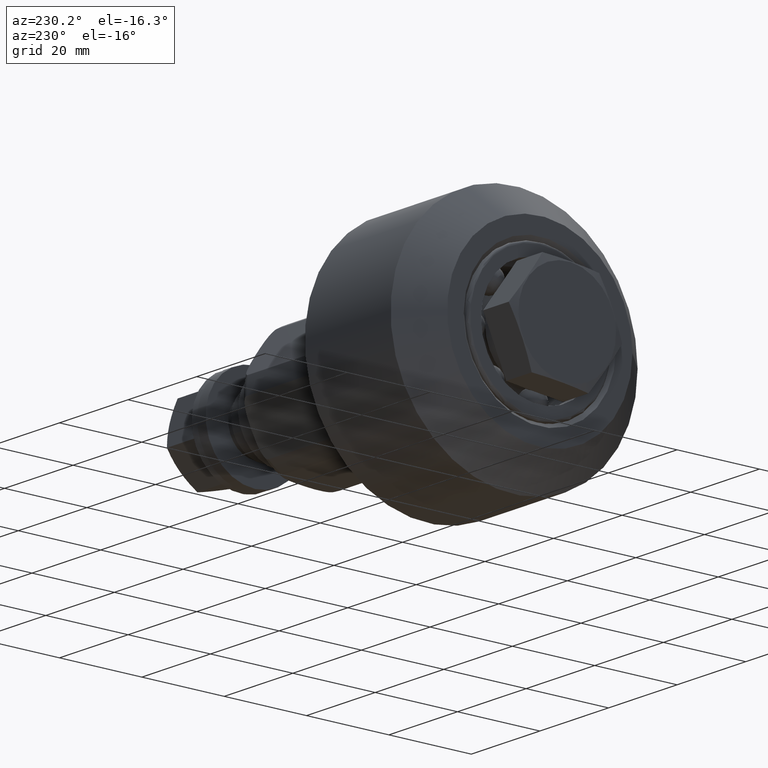
[diagram: clean part render]
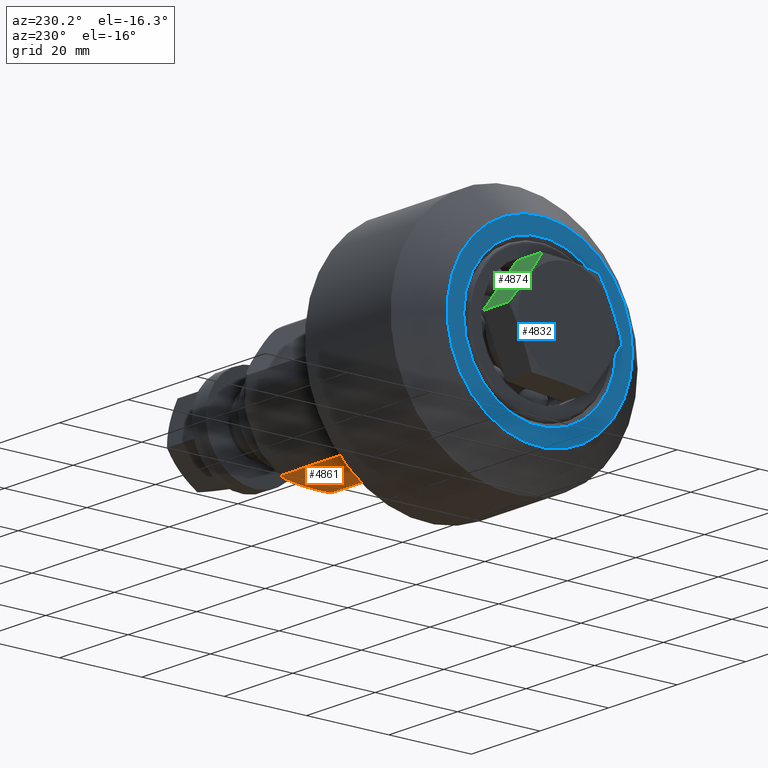
[diagram: same view with three faces highlighted in distinct colors, each labeled with its STEP entity id]
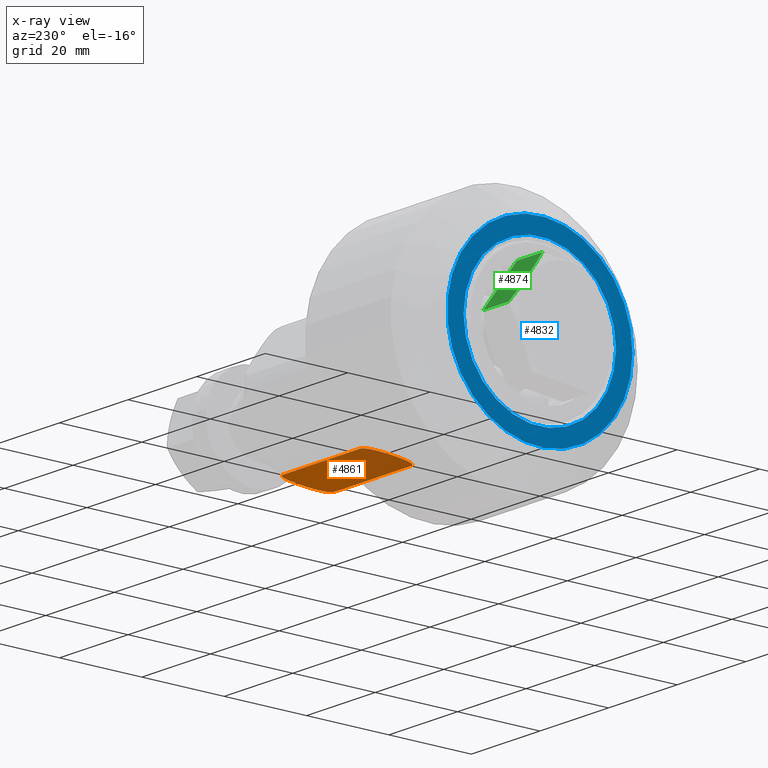
[diagram: x-ray of the same camera — body ghosted, the three highlighted faces saturated]
A machine part, auxiliary view with three faces highlighted in distinct colors.
The next image is the same camera in x-ray (body ghosted, the three faces saturated) — at least one of them is partly hidden behind the body in this view.
Their STEP definitions:

[orange] entity #4861 — the highlighted planar face has unit normal (-0, 0.0803, -0.9968).
#198=B_SPLINE_CURVE_WITH_KNOTS('',3,(#7471,#7472,#7473,#7474,#7475,#7476,
#7477,#7478,#7479,#7480,#7481,#7482,#7483,#7484,#7485,#7486,#7487,#7488,
#7489,#7490,#7491,#7492,#7493),.UNSPECIFIED.,.F.,.F.,(4,2,2,2,2,3,2,2,2,
2,4),(-0.65445505176569,-0.615458381337922,-0.559182163310771,-0.457887403956305,
-0.228943701978153,0.,0.228943701978153,0.457887403956305,0.559182163310771,
0.615458381337922,0.65445505176569),.UNSPECIFIED.);
#205=B_SPLINE_CURVE_WITH_KNOTS('',3,(#7617,#7618,#7619,#7620,#7621,#7622,
#7623,#7624,#7625,#7626,#7627,#7628,#7629,#7630,#7631,#7632,#7633,#7634,
#7635,#7636,#7637,#7638),.UNSPECIFIED.,.F.,.F.,(4,2,2,2,2,2,2,2,2,2,4),
(0.65445505176569,0.693451722193458,0.74972794022061,0.851022699575076,
1.07996640155323,1.30891010353138,1.53785380550953,1.76679750748769,1.86809226684215,
1.9243684848693,1.96336515529707),.UNSPECIFIED.);
#388=PLANE('',#5371);
#605=FACE_OUTER_BOUND('',#883,.T.);
#883=EDGE_LOOP('',(#3419,#3420,#3421,#3422));
#1167=LINE('',#7679,#1457);
#1170=LINE('',#7683,#1460);
#1457=VECTOR('',#6006,10.);
#1460=VECTOR('',#6011,10.);
#2028=VERTEX_POINT('',#7468);
#2029=VERTEX_POINT('',#7470);
#2041=VERTEX_POINT('',#7614);
#2042=VERTEX_POINT('',#7616);
#2556=EDGE_CURVE('',#2029,#2028,#198,.T.);
#2570=EDGE_CURVE('',#2042,#2041,#205,.T.);
#2581=EDGE_CURVE('',#2041,#2029,#1167,.T.);
#2584=EDGE_CURVE('',#2028,#2042,#1170,.T.);
#3419=ORIENTED_EDGE('',*,*,#2556,.T.);
#3420=ORIENTED_EDGE('',*,*,#2584,.T.);
#3421=ORIENTED_EDGE('',*,*,#2570,.T.);
#3422=ORIENTED_EDGE('',*,*,#2581,.T.);
#4861=ADVANCED_FACE('',(#605),#388,.T.);
#5371=AXIS2_PLACEMENT_3D('',#7692,#6025,#6026);
#6006=DIRECTION('',(1.,0.,0.));
#6011=DIRECTION('',(-1.,0.,0.));
#6025=DIRECTION('center_axis',(0.,-0.866025403784439,-0.5));
#6026=DIRECTION('ref_axis',(0.,-0.5,0.866025403784439));
#7468=CARTESIAN_POINT('',(11.25,-16.1153810567666,-2.08734122634724));
#7470=CARTESIAN_POINT('',(11.25,-9.86538105676658,-12.9126587736527));
#7471=CARTESIAN_POINT('Ctrl Pts',(11.25,-9.86538105676658,-12.9126587736527));
#7472=CARTESIAN_POINT('Ctrl Pts',(11.3799889014259,-9.86538105676658,-12.9126587736527));
#7473=CARTESIAN_POINT('Ctrl Pts',(11.5301733976963,-9.88645510449862,-12.8761574522597));
#7474=CARTESIAN_POINT('Ctrl Pts',(11.8106276528386,-9.96095361760971,-12.747122242463));
#7475=CARTESIAN_POINT('Ctrl Pts',(11.9729148831963,-10.0389521084763,-12.6120248933684));
#7476=CARTESIAN_POINT('Ctrl Pts',(12.2949896343247,-10.2464016996404,-12.2527116614627));
#7477=CARTESIAN_POINT('Ctrl Pts',(12.4633942317916,-10.4306637032622,-11.9335605092853));
#7478=CARTESIAN_POINT('Ctrl Pts',(12.8226536595242,-10.9509237372463,-11.0324436972774));
#7479=CARTESIAN_POINT('Ctrl Pts',(12.9412026717376,-11.360770993292,-10.3225674264636));
#7480=CARTESIAN_POINT('Ctrl Pts',(13.083465251009,-12.1896464723356,-8.886912983612));
#7481=CARTESIAN_POINT('Ctrl Pts',(13.1040496217739,-12.6088082201363,-8.16090353983178));
#7482=CARTESIAN_POINT('Ctrl Pts',(13.1040496217739,-12.9903810567666,-7.5));
#7483=CARTESIAN_POINT('Ctrl Pts',(13.1040496217739,-13.3719538933968,-6.83909646016822));
#7484=CARTESIAN_POINT('Ctrl Pts',(13.083465251009,-13.7911156411976,-6.11308701638799));
#7485=CARTESIAN_POINT('Ctrl Pts',(12.9412026717376,-14.6199911202412,-4.67743257353644));
#7486=CARTESIAN_POINT('Ctrl Pts',(12.8226536595242,-15.0298383762869,-3.96755630272263));
#7487=CARTESIAN_POINT('Ctrl Pts',(12.4633942317916,-15.550098410271,-3.06643949071468));
#7488=CARTESIAN_POINT('Ctrl Pts',(12.2949896343247,-15.7343604138928,-2.74728833853726));
#7489=CARTESIAN_POINT('Ctrl Pts',(11.9729148831963,-15.9418100050569,-2.38797510663162));
#7490=CARTESIAN_POINT('Ctrl Pts',(11.8106276528386,-16.0198084959235,-2.25287775753701));
#7491=CARTESIAN_POINT('Ctrl Pts',(11.5301733976963,-16.0943070090345,-2.12384254774027));
#7492=CARTESIAN_POINT('Ctrl Pts',(11.3799889014259,-16.1153810567666,-2.08734122634725));
#7493=CARTESIAN_POINT('Ctrl Pts',(11.25,-16.1153810567666,-2.08734122634725));
#7614=CARTESIAN_POINT('',(-11.25,-9.86538105676658,-12.9126587736527));
#7616=CARTESIAN_POINT('',(-11.25,-16.1153810567666,-2.08734122634724));
#7617=CARTESIAN_POINT('Ctrl Pts',(-11.25,-16.1153810567666,-2.08734122634725));
#7618=CARTESIAN_POINT('Ctrl Pts',(-11.3799889014259,-16.1153810567666,-2.08734122634725));
#7619=CARTESIAN_POINT('Ctrl Pts',(-11.5301733976963,-16.0943070090345,-2.12384254774027));
#7620=CARTESIAN_POINT('Ctrl Pts',(-11.8106276528386,-16.0198084959235,-2.25287775753701));
#7621=CARTESIAN_POINT('Ctrl Pts',(-11.9729148831963,-15.9418100050569,-2.38797510663162));
#7622=CARTESIAN_POINT('Ctrl Pts',(-12.2949896343247,-15.7343604138928,-2.74728833853726));
#7623=CARTESIAN_POINT('Ctrl Pts',(-12.4633942317916,-15.550098410271,-3.06643949071468));
#7624=CARTESIAN_POINT('Ctrl Pts',(-12.8226536595242,-15.0298383762869,-3.96755630272263));
#7625=CARTESIAN_POINT('Ctrl Pts',(-12.9412026717376,-14.6199911202412,-4.67743257353644));
#7626=CARTESIAN_POINT('Ctrl Pts',(-13.083465251009,-13.7911156411976,-6.11308701638799));
#7627=CARTESIAN_POINT('Ctrl Pts',(-13.1040496217739,-13.3719538933968,-6.83909646016822));
#7628=CARTESIAN_POINT('Ctrl Pts',(-13.1040496217739,-12.6088082201363,-8.16090353983178));
#7629=CARTESIAN_POINT('Ctrl Pts',(-13.083465251009,-12.1896464723356,-8.886912983612));
#7630=CARTESIAN_POINT('Ctrl Pts',(-12.9412026717376,-11.360770993292,-10.3225674264636));
#7631=CARTESIAN_POINT('Ctrl Pts',(-12.8226536595242,-10.9509237372463,-11.0324436972774));
#7632=CARTESIAN_POINT('Ctrl Pts',(-12.4633942317916,-10.4306637032622,-11.9335605092853));
#7633=CARTESIAN_POINT('Ctrl Pts',(-12.2949896343247,-10.2464016996404,-12.2527116614627));
#7634=CARTESIAN_POINT('Ctrl Pts',(-11.9729148831963,-10.0389521084763,-12.6120248933684));
#7635=CARTESIAN_POINT('Ctrl Pts',(-11.8106276528386,-9.96095361760971,-12.747122242463));
#7636=CARTESIAN_POINT('Ctrl Pts',(-11.5301733976963,-9.88645510449862,-12.8761574522597));
#7637=CARTESIAN_POINT('Ctrl Pts',(-11.3799889014259,-9.86538105676658,-12.9126587736527));
#7638=CARTESIAN_POINT('Ctrl Pts',(-11.25,-9.86538105676658,-12.9126587736527));
#7679=CARTESIAN_POINT('',(-13.25,-9.86538105676658,-12.9126587736527));
#7683=CARTESIAN_POINT('',(-13.25,-16.1153810567666,-2.08734122634724));
#7692=CARTESIAN_POINT('Origin',(13.25,-8.66025403784439,-15.));

[blue] entity #4832 — the highlighted planar face has unit normal (-1, 0, 0).
#342=FACE_BOUND('',#848,.T.);
#376=PLANE('',#5307);
#576=FACE_OUTER_BOUND('',#847,.T.);
#847=EDGE_LOOP('',(#3286));
#848=EDGE_LOOP('',(#3287));
#1731=CIRCLE('',#5304,18.5);
#1734=CIRCLE('',#5308,22.5);
#1998=VERTEX_POINT('',#7283);
#2001=VERTEX_POINT('',#7291);
#2515=EDGE_CURVE('',#1998,#1998,#1731,.T.);
#2519=EDGE_CURVE('',#2001,#2001,#1734,.T.);
#3286=ORIENTED_EDGE('',*,*,#2519,.F.);
#3287=ORIENTED_EDGE('',*,*,#2515,.F.);
#4832=ADVANCED_FACE('',(#576,#342),#376,.T.);
#5304=AXIS2_PLACEMENT_3D('',#7284,#5870,#5871);
#5307=AXIS2_PLACEMENT_3D('',#7290,#5877,#5878);
#5308=AXIS2_PLACEMENT_3D('',#7292,#5879,#5880);
#5870=DIRECTION('center_axis',(-1.,0.,0.));
#5871=DIRECTION('ref_axis',(0.,-1.,0.));
#5877=DIRECTION('center_axis',(-1.,0.,0.));
#5878=DIRECTION('ref_axis',(0.,0.,1.));
#5879=DIRECTION('center_axis',(1.,0.,0.));
#5880=DIRECTION('ref_axis',(0.,1.,0.));
#7283=CARTESIAN_POINT('',(-20.,18.5,-2.2655965784226E-15));
#7284=CARTESIAN_POINT('Origin',(-20.,0.,0.));
#7290=CARTESIAN_POINT('Origin',(-20.,20.,0.));
#7291=CARTESIAN_POINT('',(-20.,-22.5,-2.75545529808154E-15));
#7292=CARTESIAN_POINT('Origin',(-20.,0.,0.));

[green] entity #4874 — the highlighted planar face has unit normal (0, 0.8063, 0.5915).
#64=(
BOUNDED_CURVE()
B_SPLINE_CURVE(2,(#7749,#7750,#7751),.UNSPECIFIED.,.F.,.F.)
B_SPLINE_CURVE_WITH_KNOTS((3,3),(0.,1.38920738919511),.UNSPECIFIED.)
CURVE()
GEOMETRIC_REPRESENTATION_ITEM()
RATIONAL_B_SPLINE_CURVE((1.,1.15470053837925,1.))
REPRESENTATION_ITEM('')
);
#392=PLANE('',#5397);
#618=FACE_OUTER_BOUND('',#899,.T.);
#899=EDGE_LOOP('',(#3470,#3471,#3472,#3473));
#1181=LINE('',#7764,#1471);
#1182=LINE('',#7766,#1472);
#1183=LINE('',#7767,#1473);
#1471=VECTOR('',#6088,10.);
#1472=VECTOR('',#6089,10.);
#1473=VECTOR('',#6090,10.);
#2059=VERTEX_POINT('',#7744);
#2060=VERTEX_POINT('',#7748);
#2063=VERTEX_POINT('',#7763);
#2064=VERTEX_POINT('',#7765);
#2608=EDGE_CURVE('',#2060,#2059,#64,.T.);
#2613=EDGE_CURVE('',#2063,#2059,#1181,.T.);
#2614=EDGE_CURVE('',#2064,#2063,#1182,.T.);
#2615=EDGE_CURVE('',#2064,#2060,#1183,.T.);
#3470=ORIENTED_EDGE('',*,*,#2608,.T.);
#3471=ORIENTED_EDGE('',*,*,#2613,.F.);
#3472=ORIENTED_EDGE('',*,*,#2614,.F.);
#3473=ORIENTED_EDGE('',*,*,#2615,.T.);
#4874=ADVANCED_FACE('',(#618),#392,.T.);
#5397=AXIS2_PLACEMENT_3D('',#7762,#6086,#6087);
#6086=DIRECTION('center_axis',(-0.5,0.866025403784439,0.));
#6087=DIRECTION('ref_axis',(-0.866025403784439,-0.5,0.));
#6088=DIRECTION('',(0.,0.,1.));
#6089=DIRECTION('',(0.866025403784439,0.5,0.));
#6090=DIRECTION('',(0.,0.,1.));
#7744=CARTESIAN_POINT('',(0.,13.856406460551,7.46410161513776));
#7748=CARTESIAN_POINT('',(-12.,6.92820323027552,7.46410161513776));
#7749=CARTESIAN_POINT('Ctrl Pts',(-12.,6.92820323027552,7.46410161513776));
#7750=CARTESIAN_POINT('Ctrl Pts',(-6.,10.3923048454133,8.39230484541326));
#7751=CARTESIAN_POINT('Ctrl Pts',(-1.0769207853256E-14,13.856406460551,
7.46410161513776));
#7762=CARTESIAN_POINT('Origin',(0.,13.856406460551,0.));
#7763=CARTESIAN_POINT('',(0.,13.856406460551,0.));
#7764=CARTESIAN_POINT('',(0.,13.856406460551,0.));
#7765=CARTESIAN_POINT('',(-12.,6.92820323027551,0.));
#7766=CARTESIAN_POINT('',(-12.,6.92820323027551,0.));
#7767=CARTESIAN_POINT('',(-12.,6.92820323027551,0.));